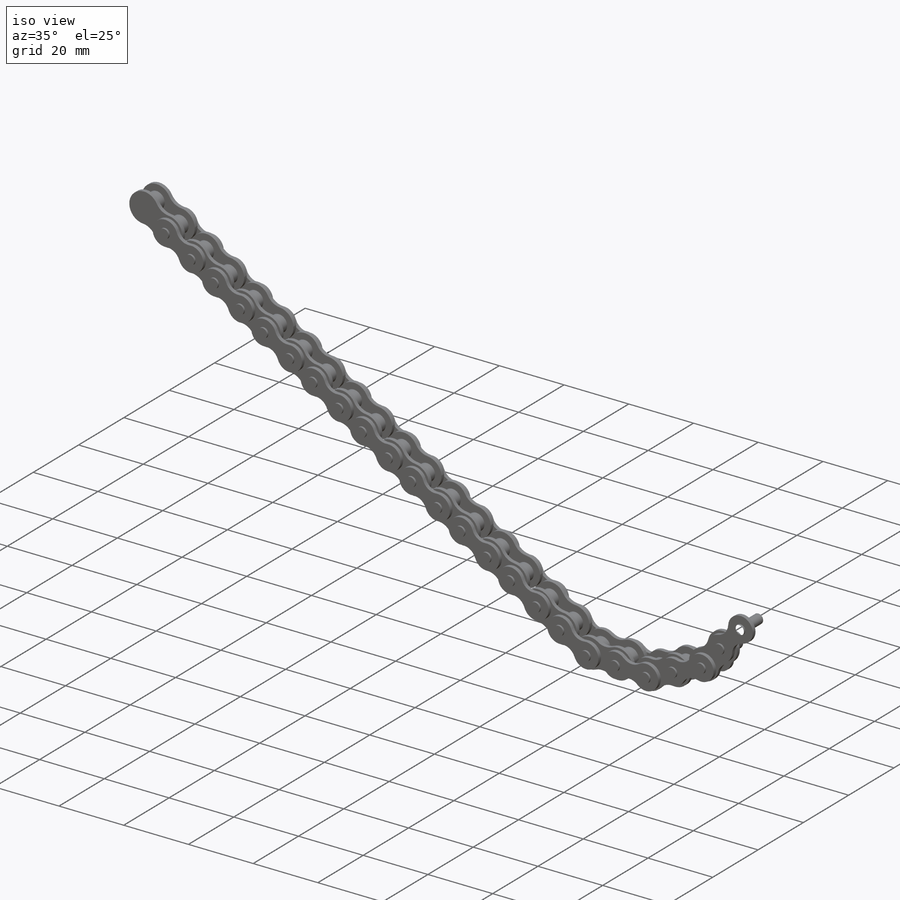
[diagram: iso view]
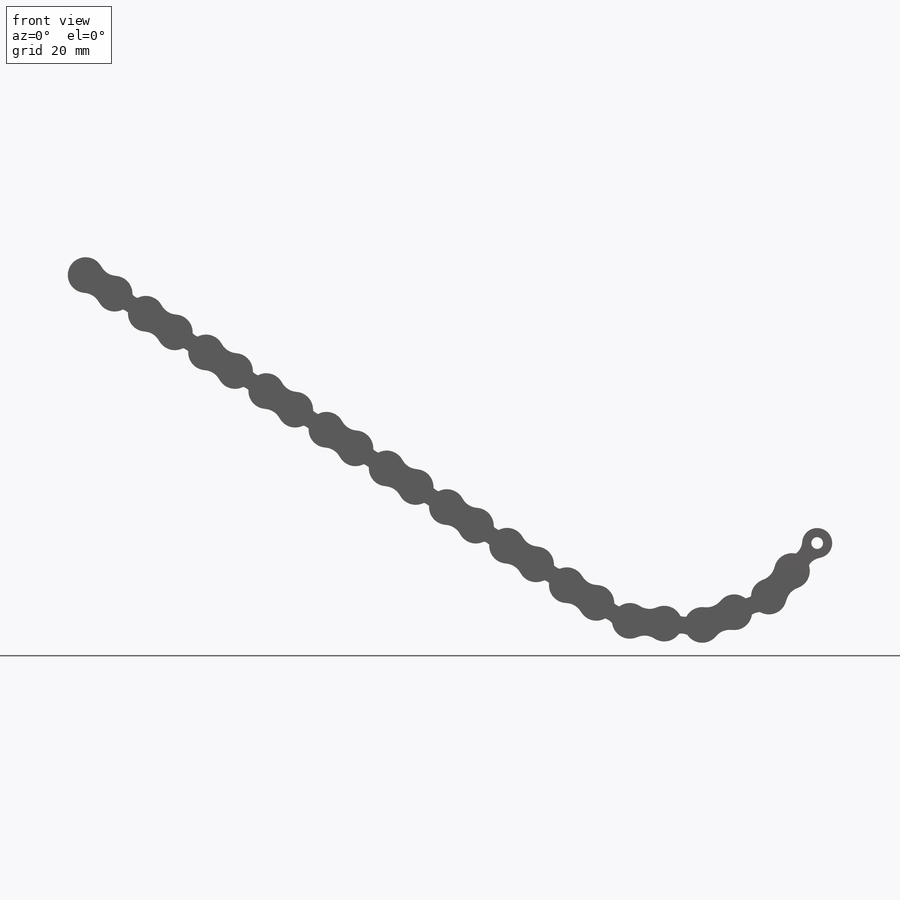
[diagram: front view]
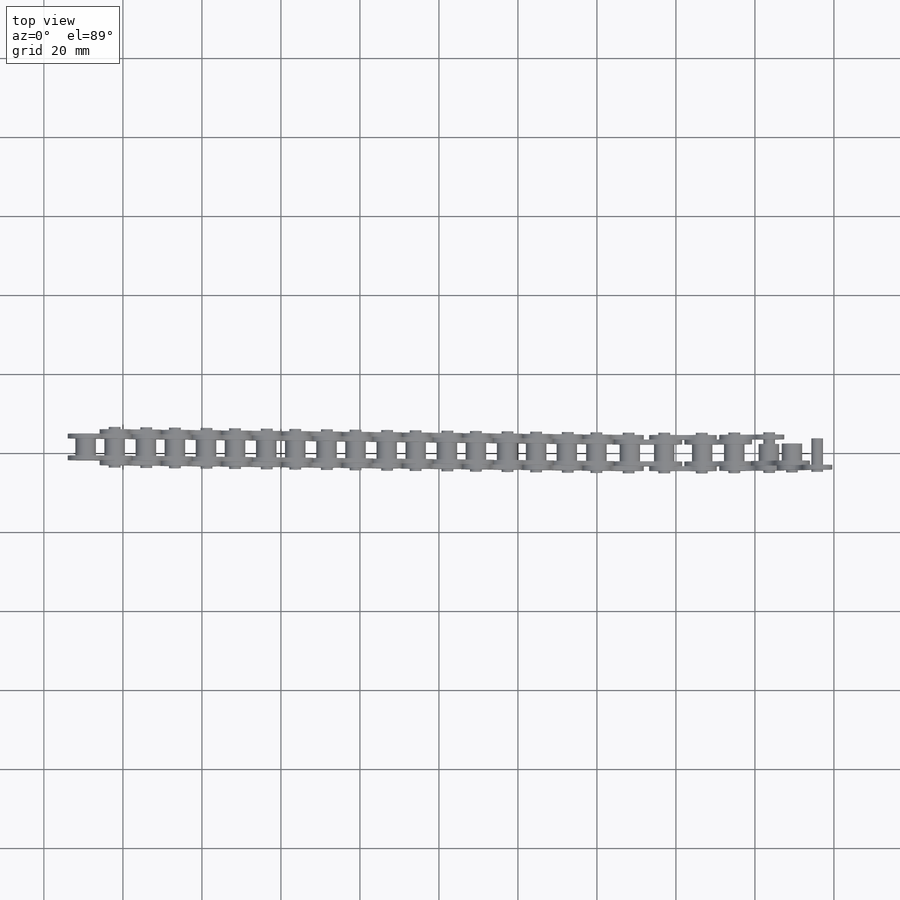
[diagram: top view]
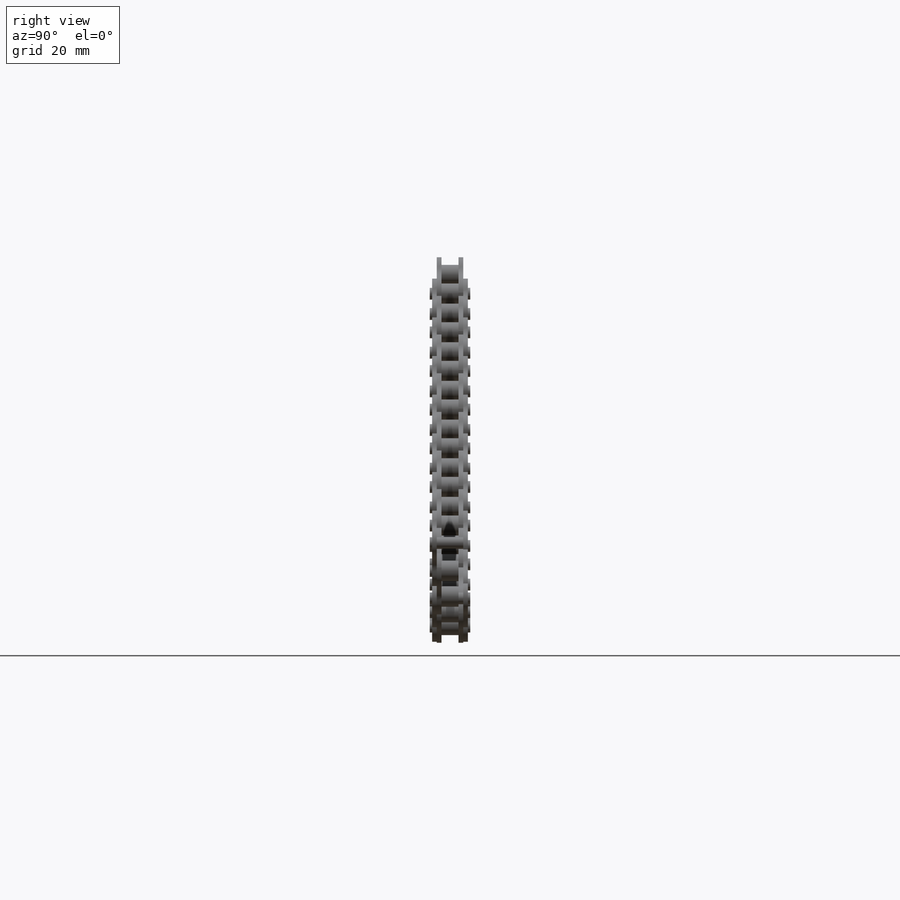
[diagram: right view]
SOLIDWORKS PART (.sldprt)
format: sldprt  version: not decoded by parser v0  size: 1,158,656 bytes
history: native  units: mm
features: sketch x4, extrude x4, material x1, pattern_linear x1, mirror x1 (+16 scaffold rows collapsed)
feature tree (27):
  scaffold x16  (default folders/planes/origin — collapsed)
  material  "AISI 4130 Steel, normalized at 870C"
  sketch  "Sketch3"  dims[D1=5.1816mm D2=~2.97688mm]
  extrude  "Extrude1"  Depth=4.318mm
  sketch  "Sketch4"  dims[D1=~4.524375mm D2=8.725mm]
  extrude  "Extrude2"  Depth=1.190625mm
  pattern_linear  "LPattern1"  Count1=2 Count2=1 Spacing1=8.7249mm Spacing2=2.54mm
  sketch  "Sketch5"  dims[D1=3.81mm D2=9.525mm]
  extrude  "Extrude3"  Depth=1.190625mm
  sketch  "Sketch6"  dims[D1=~2.97688mm]
  extrude  "Extrude4"  Depth=10.27684mm
  mirror  "Mirror1"
decode coverage: 9 of 10 modeling features carry decoded parameters
note: ~ marks probable driven/reference dimensions
note: suppression state not decoded; provenance and decode notes live in map.json
